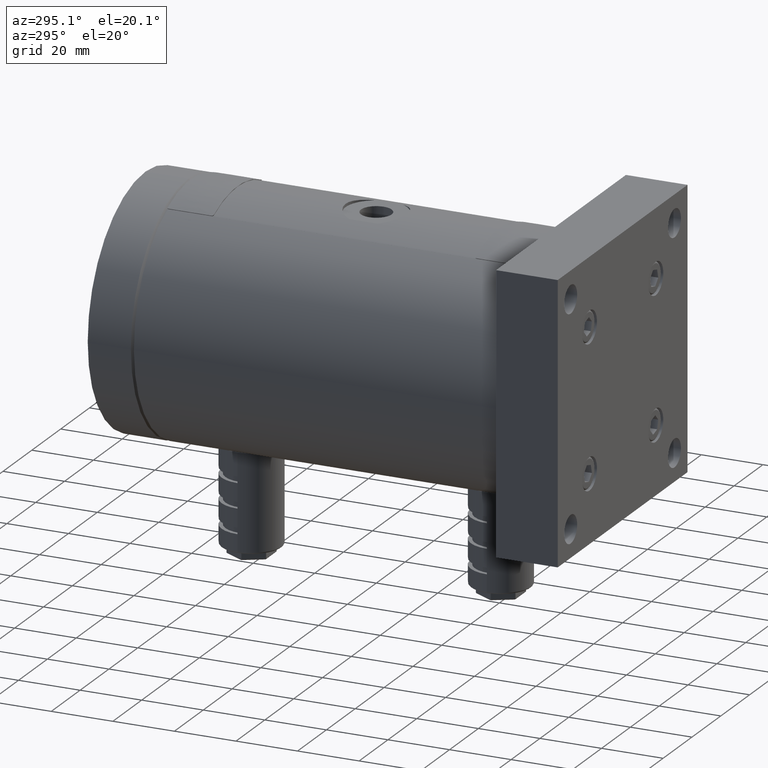
[diagram: clean part render]
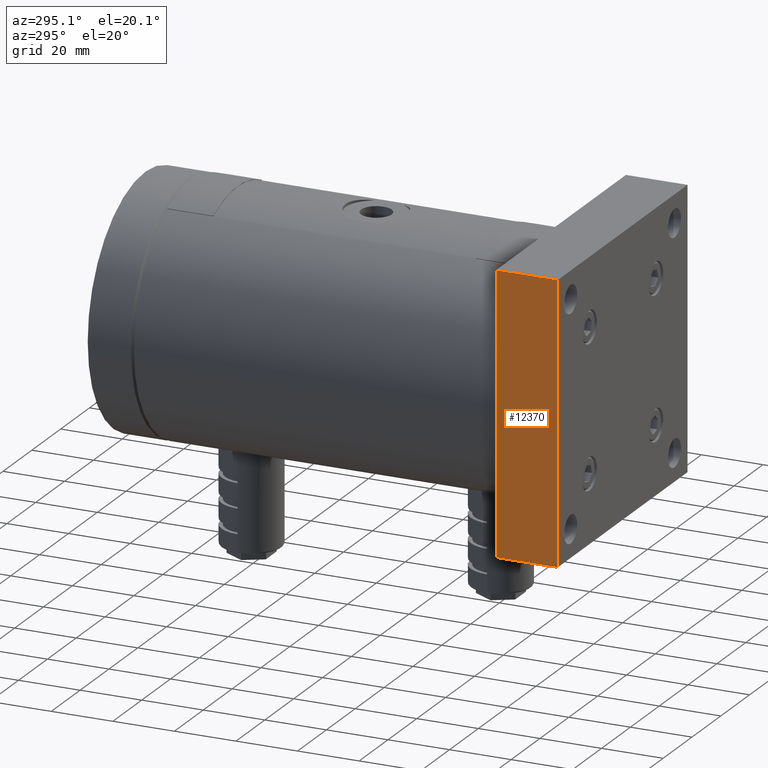
[diagram: same view with one face highlighted and labeled with its STEP entity id]
A machine part, auxiliary view. The second image highlights one B-rep face of the part: STEP entity #12370.
In plain terms, the highlighted planar face has unit normal (1, 0, 0).
Its self-contained STEP definition (entity closure, byte-faithful):
#260 = ORIENTED_EDGE ( 'NONE', *, *, #28374, .F. ) ;
#2320 = CARTESIAN_POINT ( 'NONE',  ( -45.00000000000000000, 20.00000000000000000, 45.00000000000000000 ) ) ;
#3233 = LINE ( 'NONE', #20714, #32773 ) ;
#3363 = ORIENTED_EDGE ( 'NONE', *, *, #4295, .F. ) ;
#3607 = VERTEX_POINT ( 'NONE', #8554 ) ;
#4015 = LINE ( 'NONE', #13024, #31183 ) ;
#4295 = EDGE_CURVE ( 'NONE', #3607, #4403, #31711, .T. ) ;
#4403 = VERTEX_POINT ( 'NONE', #18701 ) ;
#4987 = PLANE ( 'NONE',  #9662 ) ;
#5010 = DIRECTION ( 'NONE',  ( 0.0000000000000000000, -1.000000000000000000, 0.0000000000000000000 ) ) ;
#5782 = VERTEX_POINT ( 'NONE', #33182 ) ;
#7838 = VECTOR ( 'NONE', #22902, 1000.000000000000000 ) ;
#7873 = CARTESIAN_POINT ( 'NONE',  ( -45.00000000000000000, 0.0000000000000000000, 45.00000000000000000 ) ) ;
#8554 = CARTESIAN_POINT ( 'NONE',  ( -45.00000000000000000, 0.0000000000000000000, 45.00000000000000000 ) ) ;
#9330 = VECTOR ( 'NONE', #19979, 1000.000000000000000 ) ;
#9662 = AXIS2_PLACEMENT_3D ( 'NONE', #23071, #20692, #12918 ) ;
#12370 = ADVANCED_FACE ( 'NONE', ( #25531 ), #4987, .F. ) ;
#12629 = ORIENTED_EDGE ( 'NONE', *, *, #12993, .T. ) ;
#12918 = DIRECTION ( 'NONE',  ( 0.0000000000000000000, 0.0000000000000000000, -1.000000000000000000 ) ) ;
#12993 = EDGE_CURVE ( 'NONE', #23161, #5782, #4015, .T. ) ;
#13024 = CARTESIAN_POINT ( 'NONE',  ( -45.00000000000000000, 20.00000000000000000, 45.00000000000000000 ) ) ;
#13232 = EDGE_CURVE ( 'NONE', #5782, #4403, #24654, .T. ) ;
#13587 = EDGE_LOOP ( 'NONE', ( #18246, #3363, #260, #12629 ) ) ;
#18246 = ORIENTED_EDGE ( 'NONE', *, *, #13232, .T. ) ;
#18701 = CARTESIAN_POINT ( 'NONE',  ( -45.00000000000000000, 0.0000000000000000000, -45.00000000000000000 ) ) ;
#19661 = CARTESIAN_POINT ( 'NONE',  ( -45.00000000000000000, 20.00000000000000000, -45.00000000000000000 ) ) ;
#19979 = DIRECTION ( 'NONE',  ( 0.0000000000000000000, -1.000000000000000000, 0.0000000000000000000 ) ) ;
#20010 = DIRECTION ( 'NONE',  ( 0.0000000000000000000, 0.0000000000000000000, -1.000000000000000000 ) ) ;
#20692 = DIRECTION ( 'NONE',  ( 1.000000000000000000, 0.0000000000000000000, 0.0000000000000000000 ) ) ;
#20714 = CARTESIAN_POINT ( 'NONE',  ( -45.00000000000000000, 20.00000000000000000, 45.00000000000000000 ) ) ;
#22902 = DIRECTION ( 'NONE',  ( 0.0000000000000000000, 0.0000000000000000000, -1.000000000000000000 ) ) ;
#23071 = CARTESIAN_POINT ( 'NONE',  ( -45.00000000000000000, 20.00000000000000000, 45.00000000000000000 ) ) ;
#23161 = VERTEX_POINT ( 'NONE', #2320 ) ;
#24654 = LINE ( 'NONE', #19661, #9330 ) ;
#25531 = FACE_OUTER_BOUND ( 'NONE', #13587, .T. ) ;
#28374 = EDGE_CURVE ( 'NONE', #23161, #3607, #3233, .T. ) ;
#31183 = VECTOR ( 'NONE', #20010, 1000.000000000000000 ) ;
#31711 = LINE ( 'NONE', #7873, #7838 ) ;
#32773 = VECTOR ( 'NONE', #5010, 1000.000000000000000 ) ;
#33182 = CARTESIAN_POINT ( 'NONE',  ( -45.00000000000000000, 20.00000000000000000, -45.00000000000000000 ) ) ;